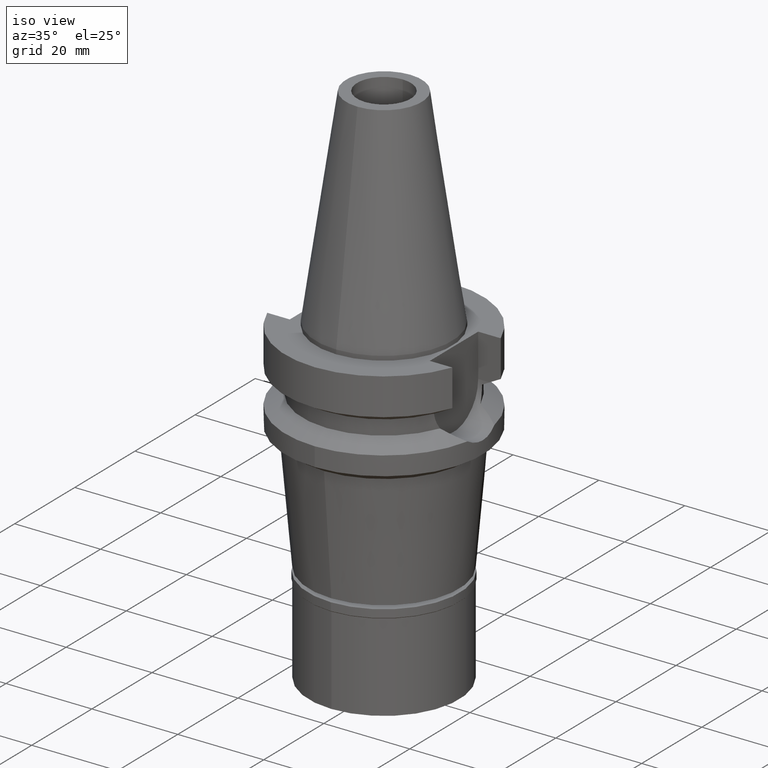
[diagram: clean part render]
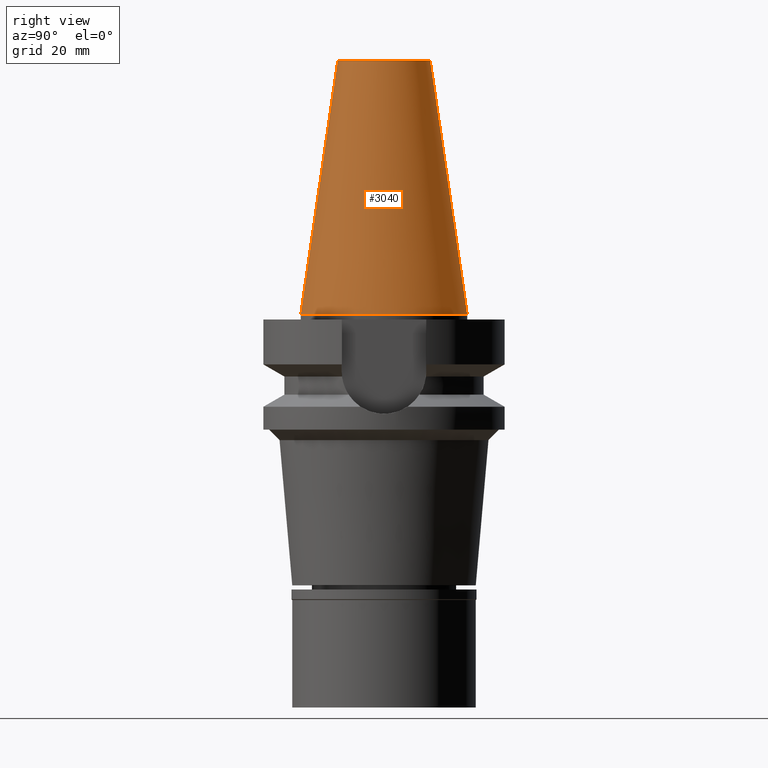
[diagram: tour spotlight — one face highlighted and labeled with its STEP entity id]
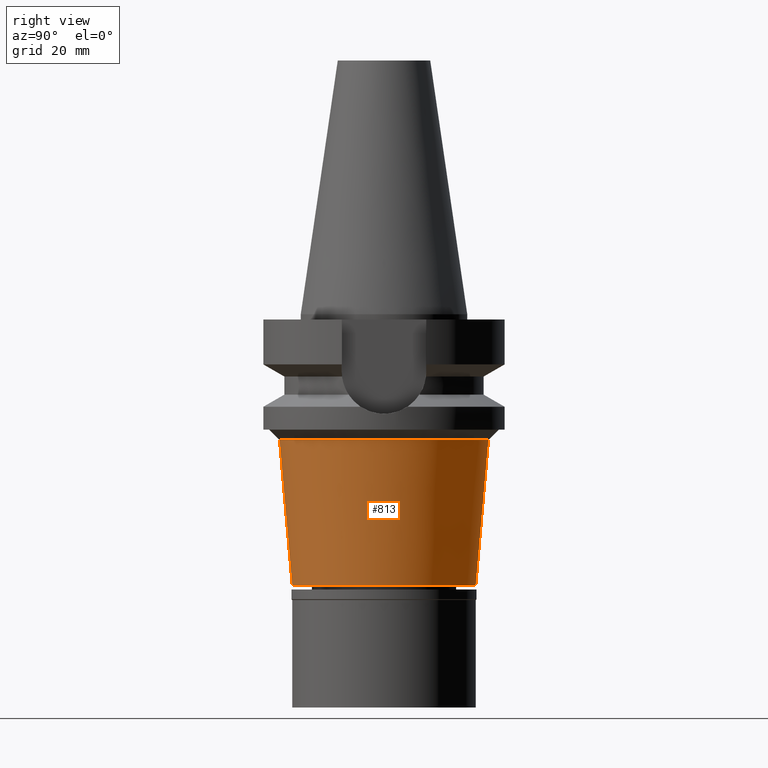
[diagram: tour spotlight — one face highlighted and labeled with its STEP entity id]
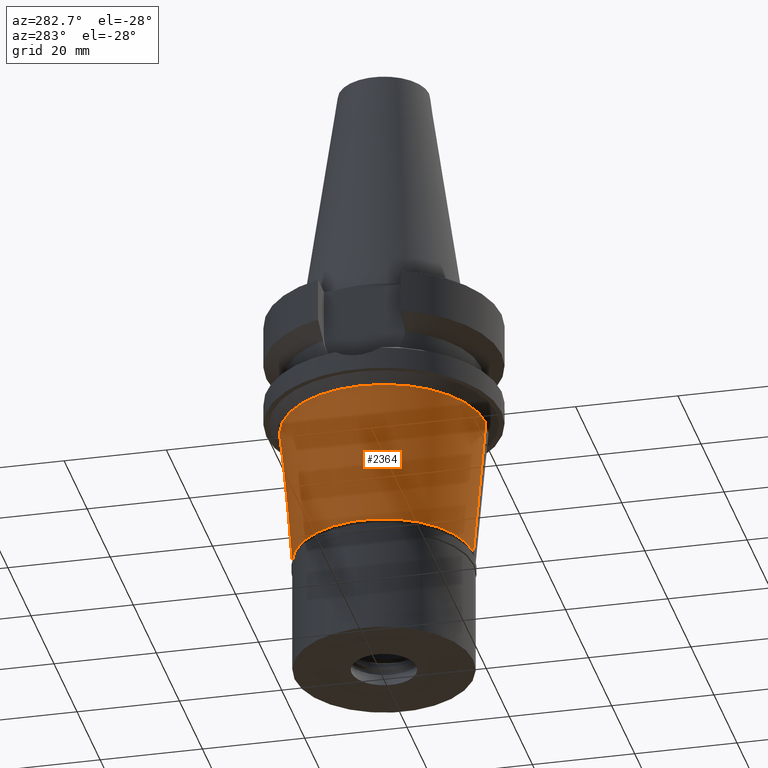
[diagram: tour spotlight — one face highlighted and labeled with its STEP entity id]
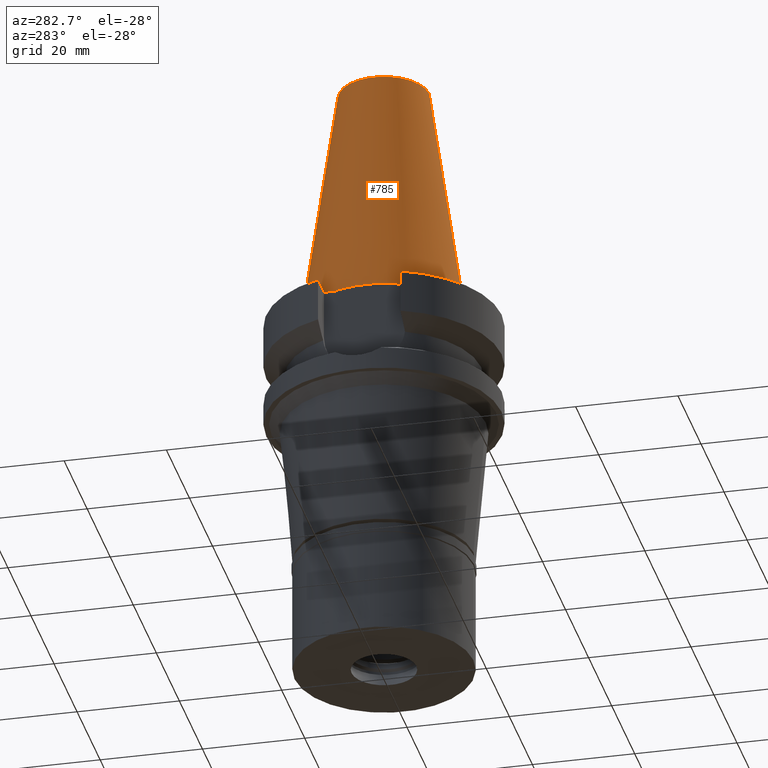
[diagram: tour spotlight — one face highlighted and labeled with its STEP entity id]
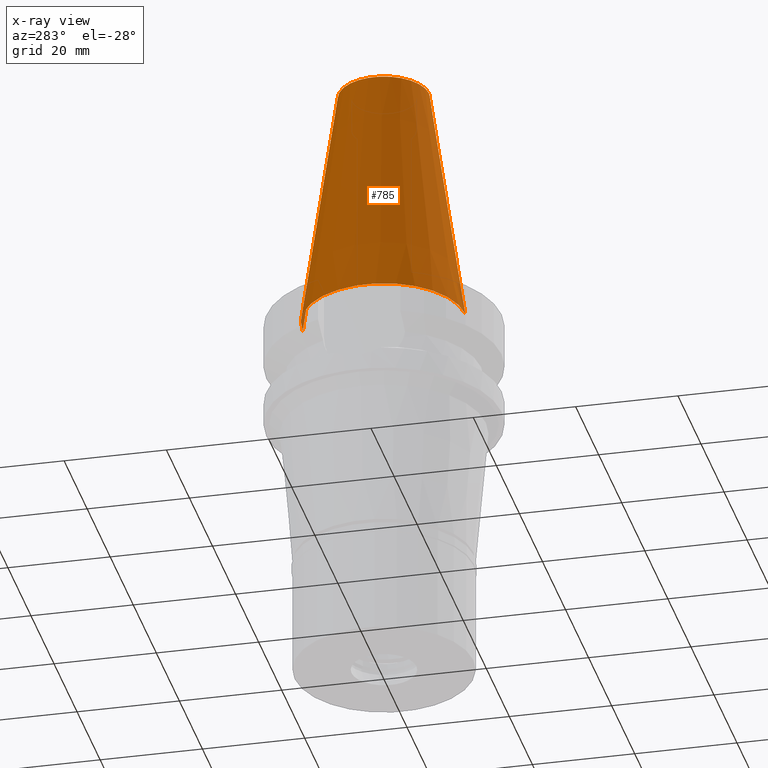
[diagram: x-ray of the same camera — body ghosted, this tour face saturated]
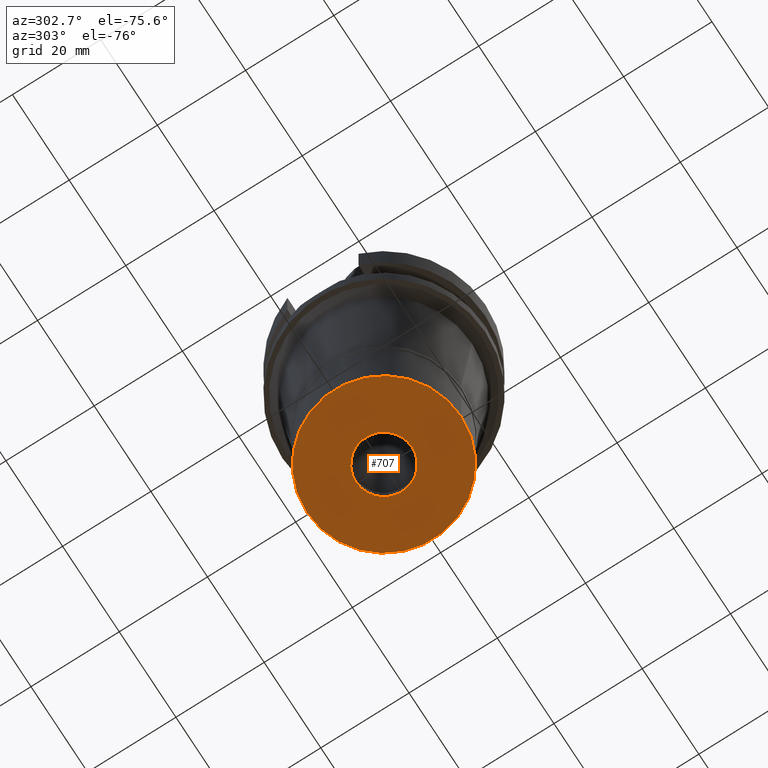
[diagram: tour spotlight — one face highlighted and labeled with its STEP entity id]
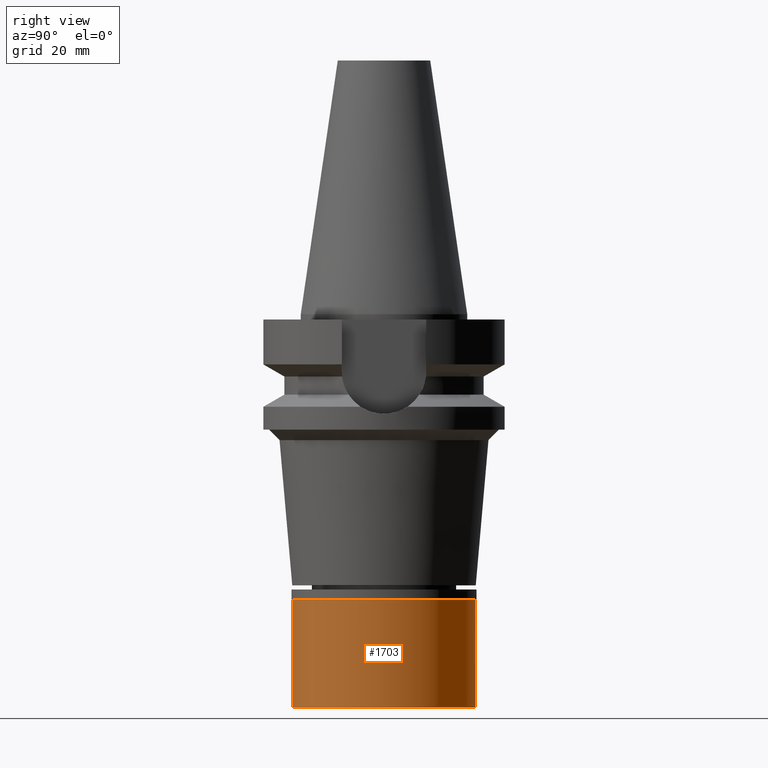
[diagram: tour spotlight — one face highlighted and labeled with its STEP entity id]
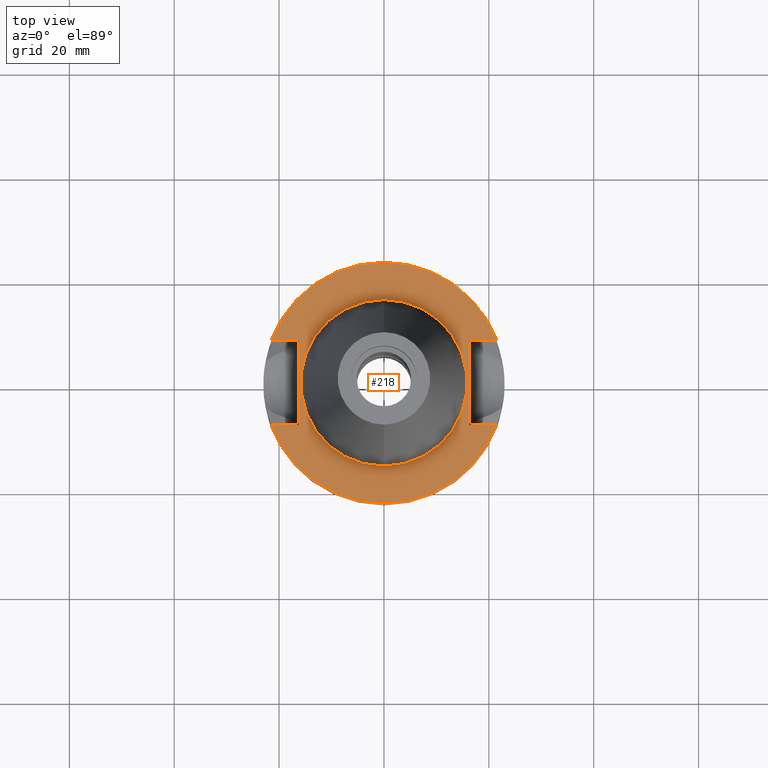
[diagram: tour spotlight — one face highlighted and labeled with its STEP entity id]
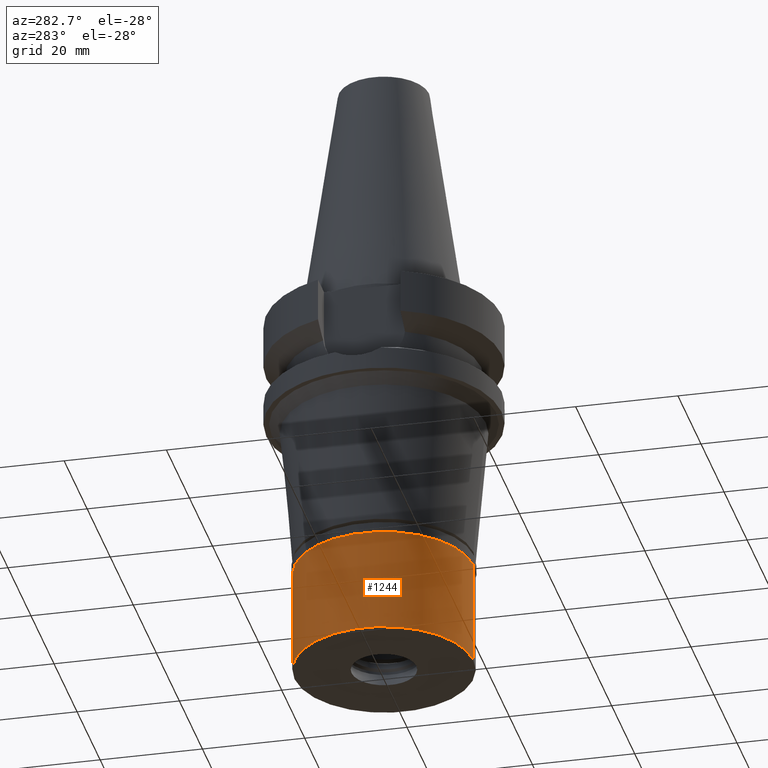
[diagram: tour spotlight — one face highlighted and labeled with its STEP entity id]
A machine part: a face-by-face anatomy tour. The part has 79 B-rep faces; the first image is the clean iso view, then the 8 largest visible faces are spotlighted one at a time (largest first), each with its STEP entity span.

Face 1 — right view, entity #3040. In plain terms, the highlighted conical surface has half-angle 8.297 deg.
Definition (entity closure, byte-faithful):
#24 = VERTEX_POINT ( 'NONE', #1794 ) ;
#98 = VECTOR ( 'NONE', #1058, 1000.000000000000114 ) ;
#153 = AXIS2_PLACEMENT_3D ( 'NONE', #2719, #1536, #2302 ) ;
#159 = ORIENTED_EDGE ( 'NONE', *, *, #1176, .T. ) ;
#251 = AXIS2_PLACEMENT_3D ( 'NONE', #893, #1591, #2109 ) ;
#431 = CARTESIAN_POINT ( 'NONE',  ( 0.0000000000000000000, 15.87500000000000000, -1.136868377215999875E-13 ) ) ;
#714 = DIRECTION ( 'NONE',  ( 0.0000000000000000000, 0.0000000000000000000, -1.000000000000000000 ) ) ;
#771 = EDGE_CURVE ( 'NONE', #2611, #1922, #1429, .T. ) ;
#880 = FACE_OUTER_BOUND ( 'NONE', #2627, .T. ) ;
#893 = CARTESIAN_POINT ( 'NONE',  ( 0.0000000000000000000, 0.0000000000000000000, 24.19999999999999929 ) ) ;
#933 = EDGE_CURVE ( 'NONE', #24, #2611, #1615, .T. ) ;
#1049 = ORIENTED_EDGE ( 'NONE', *, *, #933, .F. ) ;
#1058 = DIRECTION ( 'NONE',  ( 0.0000000000000000000, -0.1443043893539925626, -0.9895333461855498891 ) ) ;
#1176 = EDGE_CURVE ( 'NONE', #2037, #1922, #1324, .T. ) ;
#1324 = LINE ( 'NONE', #2462, #98 ) ;
#1429 = CIRCLE ( 'NONE', #2511, 15.87500000000000000 ) ;
#1484 = ORIENTED_EDGE ( 'NONE', *, *, #771, .F. ) ;
#1536 = DIRECTION ( 'NONE',  ( 0.0000000000000000000, 0.0000000000000000000, -1.000000000000000000 ) ) ;
#1591 = DIRECTION ( 'NONE',  ( 0.0000000000000000000, 0.0000000000000000000, -1.000000000000000000 ) ) ;
#1615 = LINE ( 'NONE', #3019, #2860 ) ;
#1642 = DIRECTION ( 'NONE',  ( 0.0000000000000000000, 1.000000000000000000, 0.0000000000000000000 ) ) ;
#1794 = CARTESIAN_POINT ( 'NONE',  ( 0.0000000000000000000, 8.816791732783000768, 48.39999999999999858 ) ) ;
#1922 = VERTEX_POINT ( 'NONE', #2097 ) ;
#1933 = EDGE_CURVE ( 'NONE', #24, #2037, #2084, .T. ) ;
#2037 = VERTEX_POINT ( 'NONE', #2142 ) ;
#2084 = CIRCLE ( 'NONE', #153, 8.816791732783000768 ) ;
#2097 = CARTESIAN_POINT ( 'NONE',  ( 0.0000000000000000000, -15.87500000000000000, -3.410605131648000255E-13 ) ) ;
#2098 = CARTESIAN_POINT ( 'NONE',  ( 0.0000000000000000000, 0.0000000000000000000, -3.410605131648000255E-13 ) ) ;
#2109 = DIRECTION ( 'NONE',  ( 0.0000000000000000000, -1.000000000000000000, 0.0000000000000000000 ) ) ;
#2142 = CARTESIAN_POINT ( 'NONE',  ( 0.0000000000000000000, -8.816791732783000768, 48.39999999999999858 ) ) ;
#2302 = DIRECTION ( 'NONE',  ( 0.0000000000000000000, 1.000000000000000000, 0.0000000000000000000 ) ) ;
#2306 = ORIENTED_EDGE ( 'NONE', *, *, #1933, .T. ) ;
#2462 = CARTESIAN_POINT ( 'NONE',  ( 0.0000000000000000000, -8.816791732783000768, 48.39999999999999858 ) ) ;
#2511 = AXIS2_PLACEMENT_3D ( 'NONE', #2098, #714, #1642 ) ;
#2611 = VERTEX_POINT ( 'NONE', #431 ) ;
#2615 = CONICAL_SURFACE ( 'NONE', #251, 12.34589586639000025, 0.1448099680379422438 ) ;
#2627 = EDGE_LOOP ( 'NONE', ( #2306, #159, #1484, #1049 ) ) ;
#2719 = CARTESIAN_POINT ( 'NONE',  ( 0.0000000000000000000, 0.0000000000000000000, 48.39999999999999858 ) ) ;
#2779 = DIRECTION ( 'NONE',  ( 0.0000000000000000000, 0.1443043893539925626, -0.9895333461855498891 ) ) ;
#2860 = VECTOR ( 'NONE', #2779, 1000.000000000000114 ) ;
#3019 = CARTESIAN_POINT ( 'NONE',  ( 0.0000000000000000000, 8.816791732783000768, 48.39999999999999858 ) ) ;
#3040 = ADVANCED_FACE ( 'NONE', ( #880 ), #2615, .T. ) ;

Face 2 — right view, entity #813. In plain terms, the highlighted conical surface has half-angle 5 deg.
Definition (entity closure, byte-faithful):
#105 = ORIENTED_EDGE ( 'NONE', *, *, #1020, .T. ) ;
#140 = DIRECTION ( 'NONE',  ( 0.0000000000000000000, 0.08715574274772348862, -0.9961946980917397720 ) ) ;
#241 = VERTEX_POINT ( 'NONE', #1639 ) ;
#246 = AXIS2_PLACEMENT_3D ( 'NONE', #2610, #2250, #2943 ) ;
#414 = VERTEX_POINT ( 'NONE', #2268 ) ;
#443 = AXIS2_PLACEMENT_3D ( 'NONE', #907, #2791, #1299 ) ;
#451 = CARTESIAN_POINT ( 'NONE',  ( 0.0000000000000000000, 0.0000000000000000000, -24.00000000000000000 ) ) ;
#787 = CIRCLE ( 'NONE', #1148, 19.92343597965999891 ) ;
#813 = ADVANCED_FACE ( 'NONE', ( #1653 ), #2903, .T. ) ;
#907 = CARTESIAN_POINT ( 'NONE',  ( 0.0000000000000000000, 0.0000000000000000000, -51.70000000000000284 ) ) ;
#1000 = CARTESIAN_POINT ( 'NONE',  ( 0.0000000000000000000, -19.92343597966999980, -24.00000000000000000 ) ) ;
#1020 = EDGE_CURVE ( 'NONE', #414, #1893, #2022, .T. ) ;
#1042 = DIRECTION ( 'NONE',  ( 0.0000000000000000000, -0.08715574274772348862, -0.9961946980917397720 ) ) ;
#1148 = AXIS2_PLACEMENT_3D ( 'NONE', #451, #2922, #2847 ) ;
#1162 = VERTEX_POINT ( 'NONE', #1000 ) ;
#1205 = ORIENTED_EDGE ( 'NONE', *, *, #1889, .F. ) ;
#1288 = VECTOR ( 'NONE', #140, 1000.000000000000227 ) ;
#1299 = DIRECTION ( 'NONE',  ( 0.0000000000000000000, -1.000000000000000000, 0.0000000000000000000 ) ) ;
#1639 = CARTESIAN_POINT ( 'NONE',  ( 0.0000000000000000000, 19.92343597966999980, -24.00000000000000000 ) ) ;
#1653 = FACE_OUTER_BOUND ( 'NONE', #2127, .T. ) ;
#1685 = ORIENTED_EDGE ( 'NONE', *, *, #1805, .T. ) ;
#1784 = CARTESIAN_POINT ( 'NONE',  ( 0.0000000000000000000, -19.92343597966999980, -24.00000000000000000 ) ) ;
#1805 = EDGE_CURVE ( 'NONE', #1162, #414, #1838, .T. ) ;
#1821 = VECTOR ( 'NONE', #1042, 1000.000000000000227 ) ;
#1838 = LINE ( 'NONE', #1784, #1288 ) ;
#1889 = EDGE_CURVE ( 'NONE', #241, #1893, #2641, .T. ) ;
#1893 = VERTEX_POINT ( 'NONE', #2410 ) ;
#2022 = CIRCLE ( 'NONE', #443, 17.50000000000000000 ) ;
#2127 = EDGE_LOOP ( 'NONE', ( #2742, #1685, #105, #1205 ) ) ;
#2226 = CARTESIAN_POINT ( 'NONE',  ( 0.0000000000000000000, 19.92343597966999980, -24.00000000000000000 ) ) ;
#2250 = DIRECTION ( 'NONE',  ( 0.0000000000000000000, 0.0000000000000000000, 1.000000000000000000 ) ) ;
#2268 = CARTESIAN_POINT ( 'NONE',  ( 0.0000000000000000000, -17.50000000000000000, -51.70000000000000284 ) ) ;
#2410 = CARTESIAN_POINT ( 'NONE',  ( 0.0000000000000000000, 17.50000000000000000, -51.70000000000000284 ) ) ;
#2416 = EDGE_CURVE ( 'NONE', #1162, #241, #787, .T. ) ;
#2610 = CARTESIAN_POINT ( 'NONE',  ( 0.0000000000000000000, 0.0000000000000000000, -37.85000000000000142 ) ) ;
#2641 = LINE ( 'NONE', #2226, #1821 ) ;
#2742 = ORIENTED_EDGE ( 'NONE', *, *, #2416, .F. ) ;
#2791 = DIRECTION ( 'NONE',  ( 0.0000000000000000000, 0.0000000000000000000, 1.000000000000000000 ) ) ;
#2847 = DIRECTION ( 'NONE',  ( 0.0000000000000000000, -1.000000000000000000, 0.0000000000000000000 ) ) ;
#2903 = CONICAL_SURFACE ( 'NONE', #246, 18.71171798983000301, 0.08726646259969973729 ) ;
#2922 = DIRECTION ( 'NONE',  ( 0.0000000000000000000, 0.0000000000000000000, 1.000000000000000000 ) ) ;
#2943 = DIRECTION ( 'NONE',  ( 0.0000000000000000000, 1.000000000000000000, 0.0000000000000000000 ) ) ;

Face 3 — auxiliary view, entity #2364. In plain terms, the highlighted conical surface has half-angle 5 deg.
Definition (entity closure, byte-faithful):
#17 = DIRECTION ( 'NONE',  ( 0.0000000000000000000, 0.0000000000000000000, -1.000000000000000000 ) ) ;
#93 = CIRCLE ( 'NONE', #940, 17.50000000000000000 ) ;
#96 = CIRCLE ( 'NONE', #982, 19.92343597966999980 ) ;
#140 = DIRECTION ( 'NONE',  ( 0.0000000000000000000, 0.08715574274772348862, -0.9961946980917397720 ) ) ;
#241 = VERTEX_POINT ( 'NONE', #1639 ) ;
#266 = ORIENTED_EDGE ( 'NONE', *, *, #2589, .T. ) ;
#318 = CARTESIAN_POINT ( 'NONE',  ( 0.0000000000000000000, 0.0000000000000000000, -37.85000000000000142 ) ) ;
#325 = EDGE_CURVE ( 'NONE', #1162, #241, #96, .T. ) ;
#414 = VERTEX_POINT ( 'NONE', #2268 ) ;
#522 = DIRECTION ( 'NONE',  ( 0.0000000000000000000, 1.000000000000000000, 0.0000000000000000000 ) ) ;
#750 = FACE_OUTER_BOUND ( 'NONE', #1721, .T. ) ;
#751 = DIRECTION ( 'NONE',  ( 0.0000000000000000000, -1.000000000000000000, 0.0000000000000000000 ) ) ;
#940 = AXIS2_PLACEMENT_3D ( 'NONE', #1656, #1633, #2584 ) ;
#982 = AXIS2_PLACEMENT_3D ( 'NONE', #2867, #17, #751 ) ;
#992 = ORIENTED_EDGE ( 'NONE', *, *, #1805, .F. ) ;
#1000 = CARTESIAN_POINT ( 'NONE',  ( 0.0000000000000000000, -19.92343597966999980, -24.00000000000000000 ) ) ;
#1042 = DIRECTION ( 'NONE',  ( 0.0000000000000000000, -0.08715574274772348862, -0.9961946980917397720 ) ) ;
#1162 = VERTEX_POINT ( 'NONE', #1000 ) ;
#1223 = DIRECTION ( 'NONE',  ( 0.0000000000000000000, 0.0000000000000000000, 1.000000000000000000 ) ) ;
#1288 = VECTOR ( 'NONE', #140, 1000.000000000000227 ) ;
#1419 = ORIENTED_EDGE ( 'NONE', *, *, #1889, .T. ) ;
#1495 = ORIENTED_EDGE ( 'NONE', *, *, #325, .T. ) ;
#1633 = DIRECTION ( 'NONE',  ( 0.0000000000000000000, 0.0000000000000000000, 1.000000000000000000 ) ) ;
#1639 = CARTESIAN_POINT ( 'NONE',  ( 0.0000000000000000000, 19.92343597966999980, -24.00000000000000000 ) ) ;
#1656 = CARTESIAN_POINT ( 'NONE',  ( 0.0000000000000000000, 0.0000000000000000000, -51.70000000000000284 ) ) ;
#1721 = EDGE_LOOP ( 'NONE', ( #266, #992, #1495, #1419 ) ) ;
#1784 = CARTESIAN_POINT ( 'NONE',  ( 0.0000000000000000000, -19.92343597966999980, -24.00000000000000000 ) ) ;
#1805 = EDGE_CURVE ( 'NONE', #1162, #414, #1838, .T. ) ;
#1821 = VECTOR ( 'NONE', #1042, 1000.000000000000227 ) ;
#1838 = LINE ( 'NONE', #1784, #1288 ) ;
#1889 = EDGE_CURVE ( 'NONE', #241, #1893, #2641, .T. ) ;
#1893 = VERTEX_POINT ( 'NONE', #2410 ) ;
#2226 = CARTESIAN_POINT ( 'NONE',  ( 0.0000000000000000000, 19.92343597966999980, -24.00000000000000000 ) ) ;
#2268 = CARTESIAN_POINT ( 'NONE',  ( 0.0000000000000000000, -17.50000000000000000, -51.70000000000000284 ) ) ;
#2364 = ADVANCED_FACE ( 'NONE', ( #750 ), #2824, .T. ) ;
#2410 = CARTESIAN_POINT ( 'NONE',  ( 0.0000000000000000000, 17.50000000000000000, -51.70000000000000284 ) ) ;
#2584 = DIRECTION ( 'NONE',  ( 0.0000000000000000000, 1.000000000000000000, 0.0000000000000000000 ) ) ;
#2589 = EDGE_CURVE ( 'NONE', #1893, #414, #93, .T. ) ;
#2641 = LINE ( 'NONE', #2226, #1821 ) ;
#2668 = AXIS2_PLACEMENT_3D ( 'NONE', #318, #1223, #522 ) ;
#2824 = CONICAL_SURFACE ( 'NONE', #2668, 18.71171798983000301, 0.08726646259969973729 ) ;
#2867 = CARTESIAN_POINT ( 'NONE',  ( 0.0000000000000000000, 0.0000000000000000000, -24.00000000000000000 ) ) ;

Face 4 — auxiliary view, entity #785. An x-ray twin of the same camera follows (body ghosted, this face saturated) — the face is partly hidden behind the body. In plain terms, the highlighted conical surface has half-angle 8.297 deg.
Definition (entity closure, byte-faithful):
#24 = VERTEX_POINT ( 'NONE', #1794 ) ;
#29 = DIRECTION ( 'NONE',  ( 0.0000000000000000000, -1.000000000000000000, 0.0000000000000000000 ) ) ;
#98 = VECTOR ( 'NONE', #1058, 1000.000000000000114 ) ;
#139 = EDGE_LOOP ( 'NONE', ( #3037, #1390, #454, #282 ) ) ;
#282 = ORIENTED_EDGE ( 'NONE', *, *, #933, .T. ) ;
#328 = DIRECTION ( 'NONE',  ( 0.0000000000000000000, 0.0000000000000000000, -1.000000000000000000 ) ) ;
#431 = CARTESIAN_POINT ( 'NONE',  ( 0.0000000000000000000, 15.87500000000000000, -1.136868377215999875E-13 ) ) ;
#454 = ORIENTED_EDGE ( 'NONE', *, *, #2698, .T. ) ;
#488 = AXIS2_PLACEMENT_3D ( 'NONE', #1035, #547, #1488 ) ;
#547 = DIRECTION ( 'NONE',  ( 0.0000000000000000000, 0.0000000000000000000, -1.000000000000000000 ) ) ;
#785 = ADVANCED_FACE ( 'NONE', ( #2543 ), #1869, .T. ) ;
#806 = CARTESIAN_POINT ( 'NONE',  ( 0.0000000000000000000, 0.0000000000000000000, -3.410605131648000255E-13 ) ) ;
#830 = EDGE_CURVE ( 'NONE', #1922, #2611, #2367, .T. ) ;
#933 = EDGE_CURVE ( 'NONE', #24, #2611, #1615, .T. ) ;
#960 = CARTESIAN_POINT ( 'NONE',  ( 0.0000000000000000000, 0.0000000000000000000, 24.19999999999999929 ) ) ;
#1035 = CARTESIAN_POINT ( 'NONE',  ( 0.0000000000000000000, 0.0000000000000000000, 48.39999999999999858 ) ) ;
#1058 = DIRECTION ( 'NONE',  ( 0.0000000000000000000, -0.1443043893539925626, -0.9895333461855498891 ) ) ;
#1176 = EDGE_CURVE ( 'NONE', #2037, #1922, #1324, .T. ) ;
#1324 = LINE ( 'NONE', #2462, #98 ) ;
#1390 = ORIENTED_EDGE ( 'NONE', *, *, #1176, .F. ) ;
#1488 = DIRECTION ( 'NONE',  ( 0.0000000000000000000, -1.000000000000000000, 0.0000000000000000000 ) ) ;
#1615 = LINE ( 'NONE', #3019, #2860 ) ;
#1794 = CARTESIAN_POINT ( 'NONE',  ( 0.0000000000000000000, 8.816791732783000768, 48.39999999999999858 ) ) ;
#1869 = CONICAL_SURFACE ( 'NONE', #2654, 12.34589586639000025, 0.1448099680379422438 ) ;
#1922 = VERTEX_POINT ( 'NONE', #2097 ) ;
#2037 = VERTEX_POINT ( 'NONE', #2142 ) ;
#2097 = CARTESIAN_POINT ( 'NONE',  ( 0.0000000000000000000, -15.87500000000000000, -3.410605131648000255E-13 ) ) ;
#2142 = CARTESIAN_POINT ( 'NONE',  ( 0.0000000000000000000, -8.816791732783000768, 48.39999999999999858 ) ) ;
#2367 = CIRCLE ( 'NONE', #2563, 15.87500000000000000 ) ;
#2415 = CIRCLE ( 'NONE', #488, 8.816791732783000768 ) ;
#2462 = CARTESIAN_POINT ( 'NONE',  ( 0.0000000000000000000, -8.816791732783000768, 48.39999999999999858 ) ) ;
#2543 = FACE_OUTER_BOUND ( 'NONE', #139, .T. ) ;
#2563 = AXIS2_PLACEMENT_3D ( 'NONE', #806, #328, #29 ) ;
#2611 = VERTEX_POINT ( 'NONE', #431 ) ;
#2654 = AXIS2_PLACEMENT_3D ( 'NONE', #960, #3047, #2845 ) ;
#2698 = EDGE_CURVE ( 'NONE', #2037, #24, #2415, .T. ) ;
#2779 = DIRECTION ( 'NONE',  ( 0.0000000000000000000, 0.1443043893539925626, -0.9895333461855498891 ) ) ;
#2845 = DIRECTION ( 'NONE',  ( 0.0000000000000000000, -1.000000000000000000, 0.0000000000000000000 ) ) ;
#2860 = VECTOR ( 'NONE', #2779, 1000.000000000000114 ) ;
#3019 = CARTESIAN_POINT ( 'NONE',  ( 0.0000000000000000000, 8.816791732783000768, 48.39999999999999858 ) ) ;
#3037 = ORIENTED_EDGE ( 'NONE', *, *, #830, .F. ) ;
#3047 = DIRECTION ( 'NONE',  ( 0.0000000000000000000, 0.0000000000000000000, -1.000000000000000000 ) ) ;

Face 5 — auxiliary view, entity #707. In plain terms, the highlighted planar face has unit normal (0, 0, -1).
Definition (entity closure, byte-faithful):
#58 = DIRECTION ( 'NONE',  ( 0.0000000000000000000, -1.000000000000000000, 0.0000000000000000000 ) ) ;
#76 = DIRECTION ( 'NONE',  ( 0.0000000000000000000, 0.0000000000000000000, 1.000000000000000000 ) ) ;
#120 = VERTEX_POINT ( 'NONE', #151 ) ;
#151 = CARTESIAN_POINT ( 'NONE',  ( 0.0000000000000000000, 6.349999999998999556, -22.50000000000000000 ) ) ;
#268 = ORIENTED_EDGE ( 'NONE', *, *, #2595, .F. ) ;
#292 = ORIENTED_EDGE ( 'NONE', *, *, #1220, .F. ) ;
#338 = ORIENTED_EDGE ( 'NONE', *, *, #2722, .F. ) ;
#354 = VERTEX_POINT ( 'NONE', #2173 ) ;
#384 = FACE_BOUND ( 'NONE', #2054, .T. ) ;
#416 = CARTESIAN_POINT ( 'NONE',  ( 0.0000000000000000000, 0.0000000000000000000, -22.50000000000000000 ) ) ;
#432 = VERTEX_POINT ( 'NONE', #1704 ) ;
#630 = ORIENTED_EDGE ( 'NONE', *, *, #1159, .F. ) ;
#653 = DIRECTION ( 'NONE',  ( 0.0000000000000000000, 0.0000000000000000000, -1.000000000000000000 ) ) ;
#707 = ADVANCED_FACE ( 'NONE', ( #2720, #384 ), #2737, .T. ) ;
#711 = DIRECTION ( 'NONE',  ( 0.0000000000000000000, 0.0000000000000000000, -1.000000000000000000 ) ) ;
#841 = AXIS2_PLACEMENT_3D ( 'NONE', #939, #711, #58 ) ;
#939 = CARTESIAN_POINT ( 'NONE',  ( 0.0000000000000000000, 0.0000000000000000000, -22.50000000000000000 ) ) ;
#1159 = EDGE_CURVE ( 'NONE', #1177, #354, #2026, .T. ) ;
#1177 = VERTEX_POINT ( 'NONE', #2000 ) ;
#1220 = EDGE_CURVE ( 'NONE', #432, #120, #2286, .T. ) ;
#1312 = DIRECTION ( 'NONE',  ( 0.0000000000000000000, -1.000000000000000000, 0.0000000000000000000 ) ) ;
#1452 = EDGE_LOOP ( 'NONE', ( #268, #630 ) ) ;
#1704 = CARTESIAN_POINT ( 'NONE',  ( 0.0000000000000000000, -6.349999999998999556, -22.50000000000000000 ) ) ;
#1820 = AXIS2_PLACEMENT_3D ( 'NONE', #1957, #76, #2878 ) ;
#1840 = CARTESIAN_POINT ( 'NONE',  ( 0.0000000000000000000, 0.0000000000000000000, -22.50000000000000000 ) ) ;
#1957 = CARTESIAN_POINT ( 'NONE',  ( 0.0000000000000000000, 0.0000000000000000000, -22.50000000000000000 ) ) ;
#2000 = CARTESIAN_POINT ( 'NONE',  ( 0.0000000000000000000, -17.50000000000000000, -22.50000000000000000 ) ) ;
#2026 = CIRCLE ( 'NONE', #1820, 17.50000000000000000 ) ;
#2054 = EDGE_LOOP ( 'NONE', ( #338, #292 ) ) ;
#2085 = AXIS2_PLACEMENT_3D ( 'NONE', #416, #653, #1312 ) ;
#2141 = AXIS2_PLACEMENT_3D ( 'NONE', #2932, #2216, #2679 ) ;
#2173 = CARTESIAN_POINT ( 'NONE',  ( 0.0000000000000000000, 17.50000000000000000, -22.50000000000000000 ) ) ;
#2181 = CIRCLE ( 'NONE', #2141, 6.349999999998999556 ) ;
#2216 = DIRECTION ( 'NONE',  ( 0.0000000000000000000, 0.0000000000000000000, -1.000000000000000000 ) ) ;
#2283 = DIRECTION ( 'NONE',  ( 0.0000000000000000000, 1.000000000000000000, 0.0000000000000000000 ) ) ;
#2286 = CIRCLE ( 'NONE', #841, 6.349999999998999556 ) ;
#2292 = AXIS2_PLACEMENT_3D ( 'NONE', #1840, #2324, #2283 ) ;
#2324 = DIRECTION ( 'NONE',  ( 0.0000000000000000000, 0.0000000000000000000, 1.000000000000000000 ) ) ;
#2595 = EDGE_CURVE ( 'NONE', #354, #1177, #2978, .T. ) ;
#2679 = DIRECTION ( 'NONE',  ( 0.0000000000000000000, 1.000000000000000000, 0.0000000000000000000 ) ) ;
#2720 = FACE_OUTER_BOUND ( 'NONE', #1452, .T. ) ;
#2722 = EDGE_CURVE ( 'NONE', #120, #432, #2181, .T. ) ;
#2737 = PLANE ( 'NONE',  #2085 ) ;
#2878 = DIRECTION ( 'NONE',  ( 0.0000000000000000000, -1.000000000000000000, 0.0000000000000000000 ) ) ;
#2932 = CARTESIAN_POINT ( 'NONE',  ( 0.0000000000000000000, 0.0000000000000000000, -22.50000000000000000 ) ) ;
#2978 = CIRCLE ( 'NONE', #2292, 17.50000000000000000 ) ;

Face 6 — right view, entity #1703. In plain terms, the highlighted cylindrical surface (partial cylindrical patch) has radius 17.5 mm, axis along (0, 0, -1).
Definition (entity closure, byte-faithful):
#28 = VERTEX_POINT ( 'NONE', #1999 ) ;
#76 = DIRECTION ( 'NONE',  ( 0.0000000000000000000, 0.0000000000000000000, 1.000000000000000000 ) ) ;
#116 = CARTESIAN_POINT ( 'NONE',  ( 0.0000000000000000000, 17.50000000000000000, -2.000000000000000000 ) ) ;
#127 = LINE ( 'NONE', #358, #784 ) ;
#186 = LINE ( 'NONE', #116, #842 ) ;
#354 = VERTEX_POINT ( 'NONE', #2173 ) ;
#358 = CARTESIAN_POINT ( 'NONE',  ( 0.0000000000000000000, -17.50000000000000000, -2.000000000000000000 ) ) ;
#373 = DIRECTION ( 'NONE',  ( 0.0000000000000000000, -1.000000000000000000, 0.0000000000000000000 ) ) ;
#389 = FACE_OUTER_BOUND ( 'NONE', #2505, .T. ) ;
#417 = CARTESIAN_POINT ( 'NONE',  ( 0.0000000000000000000, 0.0000000000000000000, -2.000000000000000000 ) ) ;
#445 = DIRECTION ( 'NONE',  ( 0.0000000000000000000, 0.0000000000000000000, -1.000000000000000000 ) ) ;
#449 = ORIENTED_EDGE ( 'NONE', *, *, #1159, .T. ) ;
#459 = ORIENTED_EDGE ( 'NONE', *, *, #1803, .T. ) ;
#519 = EDGE_CURVE ( 'NONE', #28, #1177, #127, .T. ) ;
#603 = ORIENTED_EDGE ( 'NONE', *, *, #519, .T. ) ;
#784 = VECTOR ( 'NONE', #2942, 1000.000000000000000 ) ;
#837 = CYLINDRICAL_SURFACE ( 'NONE', #1876, 17.50000000000000000 ) ;
#842 = VECTOR ( 'NONE', #2058, 1000.000000000000000 ) ;
#1026 = CIRCLE ( 'NONE', #1668, 17.50000000000000000 ) ;
#1103 = DIRECTION ( 'NONE',  ( 0.0000000000000000000, 1.000000000000000000, 0.0000000000000000000 ) ) ;
#1159 = EDGE_CURVE ( 'NONE', #1177, #354, #2026, .T. ) ;
#1177 = VERTEX_POINT ( 'NONE', #2000 ) ;
#1668 = AXIS2_PLACEMENT_3D ( 'NONE', #417, #445, #1103 ) ;
#1703 = ADVANCED_FACE ( 'NONE', ( #389 ), #837, .T. ) ;
#1803 = EDGE_CURVE ( 'NONE', #2776, #28, #1026, .T. ) ;
#1820 = AXIS2_PLACEMENT_3D ( 'NONE', #1957, #76, #2878 ) ;
#1876 = AXIS2_PLACEMENT_3D ( 'NONE', #3018, #2495, #373 ) ;
#1957 = CARTESIAN_POINT ( 'NONE',  ( 0.0000000000000000000, 0.0000000000000000000, -22.50000000000000000 ) ) ;
#1999 = CARTESIAN_POINT ( 'NONE',  ( 0.0000000000000000000, -17.50000000000000000, -2.000000000000000000 ) ) ;
#2000 = CARTESIAN_POINT ( 'NONE',  ( 0.0000000000000000000, -17.50000000000000000, -22.50000000000000000 ) ) ;
#2026 = CIRCLE ( 'NONE', #1820, 17.50000000000000000 ) ;
#2058 = DIRECTION ( 'NONE',  ( 0.0000000000000000000, 0.0000000000000000000, -1.000000000000000000 ) ) ;
#2173 = CARTESIAN_POINT ( 'NONE',  ( 0.0000000000000000000, 17.50000000000000000, -22.50000000000000000 ) ) ;
#2270 = EDGE_CURVE ( 'NONE', #2776, #354, #186, .T. ) ;
#2495 = DIRECTION ( 'NONE',  ( 0.0000000000000000000, 0.0000000000000000000, -1.000000000000000000 ) ) ;
#2505 = EDGE_LOOP ( 'NONE', ( #459, #603, #449, #2560 ) ) ;
#2560 = ORIENTED_EDGE ( 'NONE', *, *, #2270, .F. ) ;
#2776 = VERTEX_POINT ( 'NONE', #2912 ) ;
#2878 = DIRECTION ( 'NONE',  ( 0.0000000000000000000, -1.000000000000000000, 0.0000000000000000000 ) ) ;
#2912 = CARTESIAN_POINT ( 'NONE',  ( 0.0000000000000000000, 17.50000000000000000, -2.000000000000000000 ) ) ;
#2942 = DIRECTION ( 'NONE',  ( 0.0000000000000000000, 0.0000000000000000000, -1.000000000000000000 ) ) ;
#3018 = CARTESIAN_POINT ( 'NONE',  ( 0.0000000000000000000, 0.0000000000000000000, 0.0000000000000000000 ) ) ;

Face 7 — top view, entity #218. In plain terms, the highlighted planar face has unit normal (0, 0, -1).
Definition (entity closure, byte-faithful):
#53 = AXIS2_PLACEMENT_3D ( 'NONE', #1411, #245, #2394 ) ;
#177 = DIRECTION ( 'NONE',  ( -1.000000000000000000, 9.347030801892000173E-14, 0.0000000000000000000 ) ) ;
#218 = ADVANCED_FACE ( 'NONE', ( #1849, #2111 ), #3056, .F. ) ;
#245 = DIRECTION ( 'NONE',  ( 0.0000000000000000000, 0.0000000000000000000, -1.000000000000000000 ) ) ;
#327 = CARTESIAN_POINT ( 'NONE',  ( 21.54524309446999908, -8.050000000000000711, -1.000000000000000000 ) ) ;
#329 = LINE ( 'NONE', #589, #780 ) ;
#339 = EDGE_CURVE ( 'NONE', #518, #1077, #2418, .T. ) ;
#347 = VECTOR ( 'NONE', #177, 1000.000000000000000 ) ;
#473 = VERTEX_POINT ( 'NONE', #327 ) ;
#491 = CIRCLE ( 'NONE', #535, 15.87500000000000000 ) ;
#516 = EDGE_CURVE ( 'NONE', #1077, #2951, #2676, .T. ) ;
#518 = VERTEX_POINT ( 'NONE', #1047 ) ;
#535 = AXIS2_PLACEMENT_3D ( 'NONE', #1078, #2021, #1781 ) ;
#538 = VECTOR ( 'NONE', #1496, 1000.000000000000000 ) ;
#557 = CARTESIAN_POINT ( 'NONE',  ( 21.54524309446999908, 8.050000000000000711, -1.000000000000000000 ) ) ;
#572 = CARTESIAN_POINT ( 'NONE',  ( 0.0000000000000000000, 0.0000000000000000000, -1.000000000000000000 ) ) ;
#577 = ORIENTED_EDGE ( 'NONE', *, *, #3014, .F. ) ;
#589 = CARTESIAN_POINT ( 'NONE',  ( -16.29999999999999716, -8.050000000000000711, -1.000000000000000000 ) ) ;
#627 = CARTESIAN_POINT ( 'NONE',  ( 0.0000000000000000000, -15.87500000000000000, -1.000000000000000000 ) ) ;
#638 = CARTESIAN_POINT ( 'NONE',  ( -21.54524309446999908, 8.050000000000000711, -1.000000000000000000 ) ) ;
#722 = EDGE_LOOP ( 'NONE', ( #1257, #2325 ) ) ;
#740 = EDGE_CURVE ( 'NONE', #473, #1908, #2990, .T. ) ;
#780 = VECTOR ( 'NONE', #1307, 1000.000000000000000 ) ;
#793 = AXIS2_PLACEMENT_3D ( 'NONE', #572, #844, #808 ) ;
#801 = DIRECTION ( 'NONE',  ( 0.0000000000000000000, -1.000000000000000000, 0.0000000000000000000 ) ) ;
#808 = DIRECTION ( 'NONE',  ( 0.0000000000000000000, 1.000000000000000000, 0.0000000000000000000 ) ) ;
#844 = DIRECTION ( 'NONE',  ( 0.0000000000000000000, 0.0000000000000000000, 1.000000000000000000 ) ) ;
#890 = VERTEX_POINT ( 'NONE', #1962 ) ;
#929 = CARTESIAN_POINT ( 'NONE',  ( 0.0000000000000000000, 0.0000000000000000000, -1.000000000000000000 ) ) ;
#956 = ORIENTED_EDGE ( 'NONE', *, *, #2019, .F. ) ;
#1004 = VERTEX_POINT ( 'NONE', #1404 ) ;
#1047 = CARTESIAN_POINT ( 'NONE',  ( -21.54524309446999908, 8.050000000000000711, -1.000000000000000000 ) ) ;
#1077 = VERTEX_POINT ( 'NONE', #1990 ) ;
#1078 = CARTESIAN_POINT ( 'NONE',  ( 0.0000000000000000000, 0.0000000000000000000, -1.000000000000000000 ) ) ;
#1137 = LINE ( 'NONE', #638, #1478 ) ;
#1138 = CARTESIAN_POINT ( 'NONE',  ( -21.54524309446999908, -8.050000000000000711, -1.000000000000000000 ) ) ;
#1210 = CARTESIAN_POINT ( 'NONE',  ( 0.0000000000000000000, 0.0000000000000000000, -1.000000000000000000 ) ) ;
#1257 = ORIENTED_EDGE ( 'NONE', *, *, #2741, .F. ) ;
#1280 = ORIENTED_EDGE ( 'NONE', *, *, #2841, .F. ) ;
#1307 = DIRECTION ( 'NONE',  ( 0.0000000000000000000, 1.000000000000000000, 0.0000000000000000000 ) ) ;
#1343 = CIRCLE ( 'NONE', #793, 15.87500000000000000 ) ;
#1354 = CARTESIAN_POINT ( 'NONE',  ( -21.54524309446999908, -8.050000000000000711, -1.000000000000000000 ) ) ;
#1387 = CIRCLE ( 'NONE', #53, 23.00000000000000000 ) ;
#1388 = AXIS2_PLACEMENT_3D ( 'NONE', #1210, #1454, #2402 ) ;
#1404 = CARTESIAN_POINT ( 'NONE',  ( -16.29999999999999716, -8.050000000000000711, -1.000000000000000000 ) ) ;
#1411 = CARTESIAN_POINT ( 'NONE',  ( 0.0000000000000000000, 0.0000000000000000000, -1.000000000000000000 ) ) ;
#1421 = ORIENTED_EDGE ( 'NONE', *, *, #740, .T. ) ;
#1454 = DIRECTION ( 'NONE',  ( 0.0000000000000000000, 0.0000000000000000000, -1.000000000000000000 ) ) ;
#1463 = EDGE_LOOP ( 'NONE', ( #577, #956, #1421, #2481, #2408, #2391, #1970, #1280 ) ) ;
#1478 = VECTOR ( 'NONE', #2269, 1000.000000000000000 ) ;
#1496 = DIRECTION ( 'NONE',  ( -1.000000000000000000, -9.380896855521999773E-14, 0.0000000000000000000 ) ) ;
#1620 = DIRECTION ( 'NONE',  ( 0.0000000000000000000, 0.0000000000000000000, -1.000000000000000000 ) ) ;
#1661 = AXIS2_PLACEMENT_3D ( 'NONE', #929, #1620, #2188 ) ;
#1690 = EDGE_CURVE ( 'NONE', #518, #890, #1137, .T. ) ;
#1781 = DIRECTION ( 'NONE',  ( 0.0000000000000000000, -1.000000000000000000, 0.0000000000000000000 ) ) ;
#1849 = FACE_OUTER_BOUND ( 'NONE', #1463, .T. ) ;
#1867 = EDGE_CURVE ( 'NONE', #2951, #1908, #2450, .T. ) ;
#1908 = VERTEX_POINT ( 'NONE', #2542 ) ;
#1938 = EDGE_CURVE ( 'NONE', #2262, #2852, #491, .T. ) ;
#1962 = CARTESIAN_POINT ( 'NONE',  ( -16.29999999999999716, 8.050000000000000711, -1.000000000000000000 ) ) ;
#1970 = ORIENTED_EDGE ( 'NONE', *, *, #1690, .T. ) ;
#1990 = CARTESIAN_POINT ( 'NONE',  ( 21.54524309446999908, 8.050000000000000711, -1.000000000000000000 ) ) ;
#2019 = EDGE_CURVE ( 'NONE', #473, #2642, #1387, .T. ) ;
#2021 = DIRECTION ( 'NONE',  ( 0.0000000000000000000, 0.0000000000000000000, 1.000000000000000000 ) ) ;
#2070 = DIRECTION ( 'NONE',  ( 1.000000000000000000, 9.313164748262000573E-14, 0.0000000000000000000 ) ) ;
#2111 = FACE_BOUND ( 'NONE', #722, .T. ) ;
#2188 = DIRECTION ( 'NONE',  ( 0.0000000000000000000, -1.000000000000000000, 0.0000000000000000000 ) ) ;
#2262 = VERTEX_POINT ( 'NONE', #627 ) ;
#2269 = DIRECTION ( 'NONE',  ( 1.000000000000000000, -9.347030801892000173E-14, 0.0000000000000000000 ) ) ;
#2297 = LINE ( 'NONE', #1354, #2661 ) ;
#2325 = ORIENTED_EDGE ( 'NONE', *, *, #1938, .F. ) ;
#2391 = ORIENTED_EDGE ( 'NONE', *, *, #339, .F. ) ;
#2394 = DIRECTION ( 'NONE',  ( 0.0000000000000000000, -1.000000000000000000, 0.0000000000000000000 ) ) ;
#2402 = DIRECTION ( 'NONE',  ( -0.9367496997597649644, 0.3499999999999864886, 0.0000000000000000000 ) ) ;
#2408 = ORIENTED_EDGE ( 'NONE', *, *, #516, .F. ) ;
#2418 = CIRCLE ( 'NONE', #1388, 23.00000000000000355 ) ;
#2450 = LINE ( 'NONE', #2920, #2822 ) ;
#2481 = ORIENTED_EDGE ( 'NONE', *, *, #1867, .F. ) ;
#2516 = CARTESIAN_POINT ( 'NONE',  ( 21.54524309446999908, -8.050000000000000711, -1.000000000000000000 ) ) ;
#2542 = CARTESIAN_POINT ( 'NONE',  ( 16.29999999999999716, -8.050000000000000711, -1.000000000000000000 ) ) ;
#2642 = VERTEX_POINT ( 'NONE', #1138 ) ;
#2661 = VECTOR ( 'NONE', #2070, 1000.000000000000000 ) ;
#2676 = LINE ( 'NONE', #557, #538 ) ;
#2741 = EDGE_CURVE ( 'NONE', #2852, #2262, #1343, .T. ) ;
#2822 = VECTOR ( 'NONE', #801, 1000.000000000000000 ) ;
#2841 = EDGE_CURVE ( 'NONE', #1004, #890, #329, .T. ) ;
#2852 = VERTEX_POINT ( 'NONE', #2962 ) ;
#2920 = CARTESIAN_POINT ( 'NONE',  ( 16.29999999999999716, 8.050000000000000711, -1.000000000000000000 ) ) ;
#2951 = VERTEX_POINT ( 'NONE', #3021 ) ;
#2962 = CARTESIAN_POINT ( 'NONE',  ( 0.0000000000000000000, 15.87500000000000000, -1.000000000000000000 ) ) ;
#2990 = LINE ( 'NONE', #2516, #347 ) ;
#3014 = EDGE_CURVE ( 'NONE', #2642, #1004, #2297, .T. ) ;
#3021 = CARTESIAN_POINT ( 'NONE',  ( 16.29999999999999716, 8.050000000000000711, -1.000000000000000000 ) ) ;
#3056 = PLANE ( 'NONE',  #1661 ) ;

Face 8 — auxiliary view, entity #1244. In plain terms, the highlighted cylindrical surface (partial cylindrical patch) has radius 17.5 mm, axis along (0, 0, -1).
Definition (entity closure, byte-faithful):
#28 = VERTEX_POINT ( 'NONE', #1999 ) ;
#37 = AXIS2_PLACEMENT_3D ( 'NONE', #828, #798, #1756 ) ;
#56 = EDGE_CURVE ( 'NONE', #28, #2776, #1749, .T. ) ;
#73 = ORIENTED_EDGE ( 'NONE', *, *, #56, .T. ) ;
#116 = CARTESIAN_POINT ( 'NONE',  ( 0.0000000000000000000, 17.50000000000000000, -2.000000000000000000 ) ) ;
#127 = LINE ( 'NONE', #358, #784 ) ;
#186 = LINE ( 'NONE', #116, #842 ) ;
#275 = DIRECTION ( 'NONE',  ( 0.0000000000000000000, -1.000000000000000000, 0.0000000000000000000 ) ) ;
#354 = VERTEX_POINT ( 'NONE', #2173 ) ;
#358 = CARTESIAN_POINT ( 'NONE',  ( 0.0000000000000000000, -17.50000000000000000, -2.000000000000000000 ) ) ;
#429 = ORIENTED_EDGE ( 'NONE', *, *, #519, .F. ) ;
#512 = DIRECTION ( 'NONE',  ( 0.0000000000000000000, 0.0000000000000000000, -1.000000000000000000 ) ) ;
#519 = EDGE_CURVE ( 'NONE', #28, #1177, #127, .T. ) ;
#753 = ORIENTED_EDGE ( 'NONE', *, *, #2270, .T. ) ;
#784 = VECTOR ( 'NONE', #2942, 1000.000000000000000 ) ;
#798 = DIRECTION ( 'NONE',  ( 0.0000000000000000000, 0.0000000000000000000, -1.000000000000000000 ) ) ;
#828 = CARTESIAN_POINT ( 'NONE',  ( 0.0000000000000000000, 0.0000000000000000000, -2.000000000000000000 ) ) ;
#842 = VECTOR ( 'NONE', #2058, 1000.000000000000000 ) ;
#1154 = EDGE_LOOP ( 'NONE', ( #2666, #429, #73, #753 ) ) ;
#1177 = VERTEX_POINT ( 'NONE', #2000 ) ;
#1244 = ADVANCED_FACE ( 'NONE', ( #2868 ), #2883, .T. ) ;
#1245 = CARTESIAN_POINT ( 'NONE',  ( 0.0000000000000000000, 0.0000000000000000000, 0.0000000000000000000 ) ) ;
#1749 = CIRCLE ( 'NONE', #37, 17.50000000000000000 ) ;
#1756 = DIRECTION ( 'NONE',  ( 0.0000000000000000000, -1.000000000000000000, 0.0000000000000000000 ) ) ;
#1840 = CARTESIAN_POINT ( 'NONE',  ( 0.0000000000000000000, 0.0000000000000000000, -22.50000000000000000 ) ) ;
#1999 = CARTESIAN_POINT ( 'NONE',  ( 0.0000000000000000000, -17.50000000000000000, -2.000000000000000000 ) ) ;
#2000 = CARTESIAN_POINT ( 'NONE',  ( 0.0000000000000000000, -17.50000000000000000, -22.50000000000000000 ) ) ;
#2058 = DIRECTION ( 'NONE',  ( 0.0000000000000000000, 0.0000000000000000000, -1.000000000000000000 ) ) ;
#2173 = CARTESIAN_POINT ( 'NONE',  ( 0.0000000000000000000, 17.50000000000000000, -22.50000000000000000 ) ) ;
#2270 = EDGE_CURVE ( 'NONE', #2776, #354, #186, .T. ) ;
#2283 = DIRECTION ( 'NONE',  ( 0.0000000000000000000, 1.000000000000000000, 0.0000000000000000000 ) ) ;
#2292 = AXIS2_PLACEMENT_3D ( 'NONE', #1840, #2324, #2283 ) ;
#2324 = DIRECTION ( 'NONE',  ( 0.0000000000000000000, 0.0000000000000000000, 1.000000000000000000 ) ) ;
#2595 = EDGE_CURVE ( 'NONE', #354, #1177, #2978, .T. ) ;
#2666 = ORIENTED_EDGE ( 'NONE', *, *, #2595, .T. ) ;
#2776 = VERTEX_POINT ( 'NONE', #2912 ) ;
#2868 = FACE_OUTER_BOUND ( 'NONE', #1154, .T. ) ;
#2883 = CYLINDRICAL_SURFACE ( 'NONE', #2972, 17.50000000000000000 ) ;
#2912 = CARTESIAN_POINT ( 'NONE',  ( 0.0000000000000000000, 17.50000000000000000, -2.000000000000000000 ) ) ;
#2942 = DIRECTION ( 'NONE',  ( 0.0000000000000000000, 0.0000000000000000000, -1.000000000000000000 ) ) ;
#2972 = AXIS2_PLACEMENT_3D ( 'NONE', #1245, #512, #275 ) ;
#2978 = CIRCLE ( 'NONE', #2292, 17.50000000000000000 ) ;